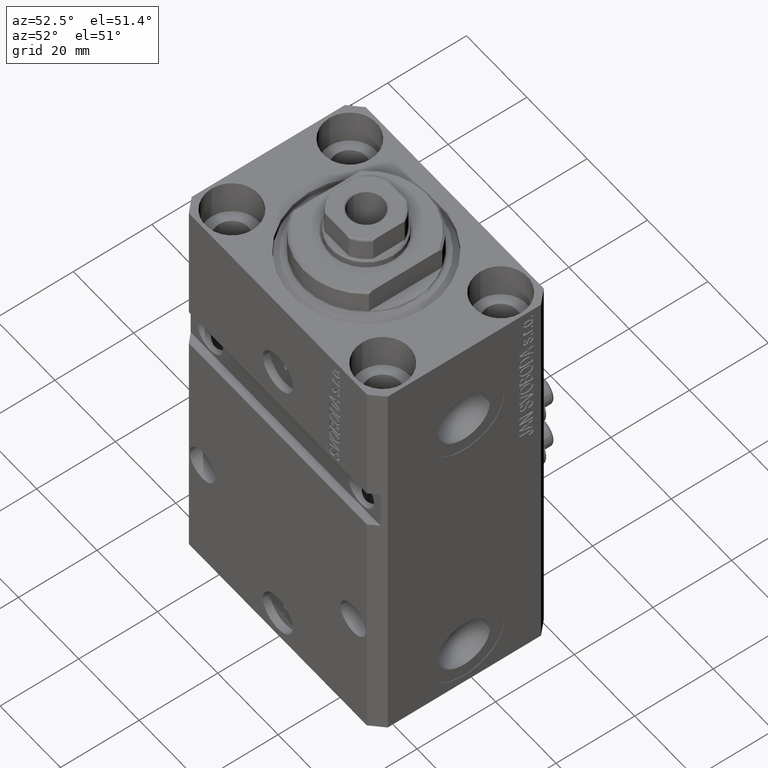
[diagram: clean part render]
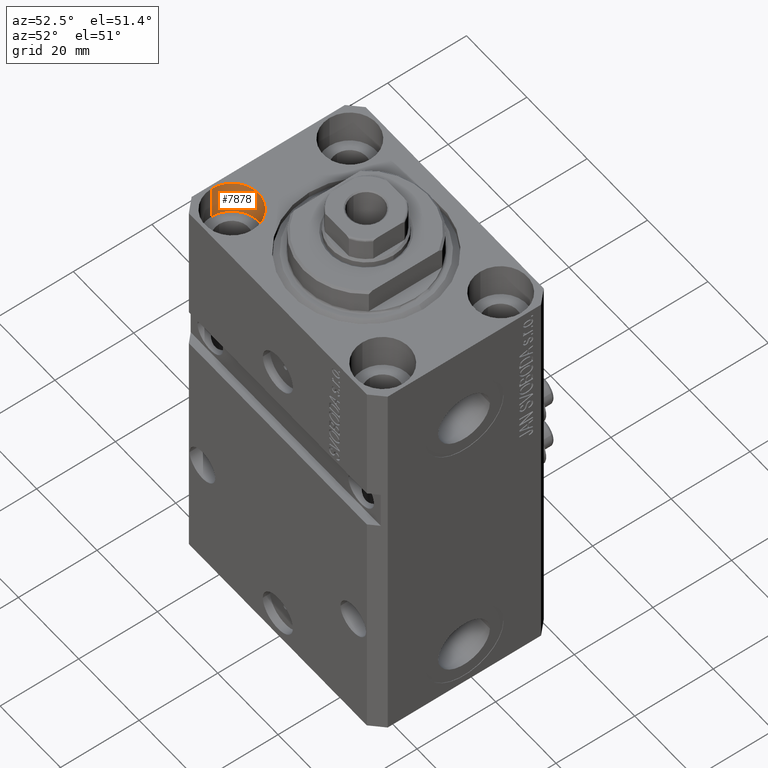
[diagram: same view with one face highlighted and labeled with its STEP entity id]
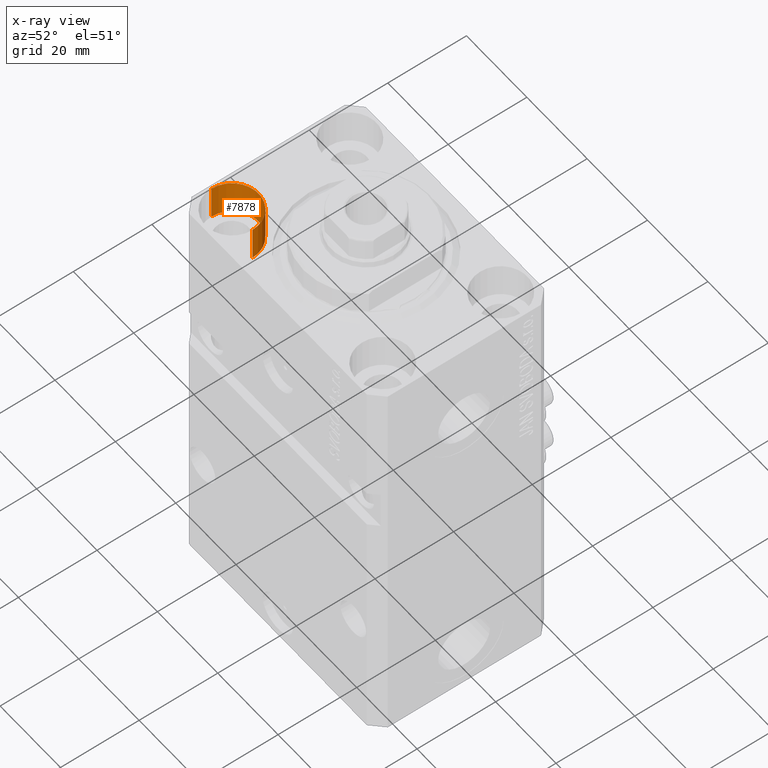
[diagram: x-ray of the same camera — body ghosted, the highlighted face saturated]
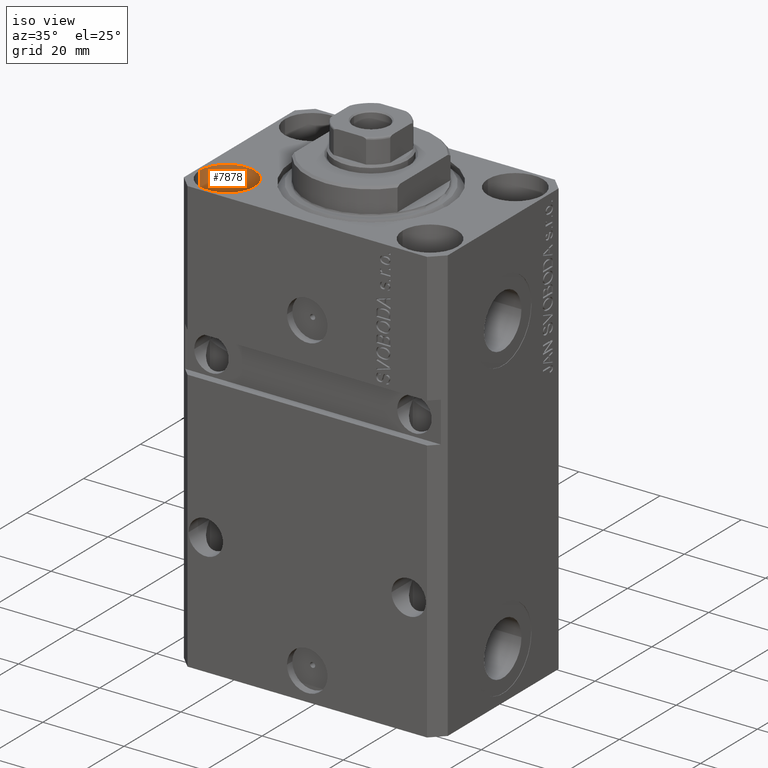
[diagram: same view with one face highlighted and labeled with its STEP entity id]
A machine part, auxiliary view. The second image highlights one B-rep face of the part: STEP entity #7878.
The next image is the same camera in x-ray: the body ghosted, the highlighted face saturated — about 0% of this face is hidden behind the body in this view.
A second angle (iso view) of the same face is appended — the face is thin or edge-on in the first view.
In plain terms, the highlighted cylindrical surface (edge-blend (fillet) strip) has radius 6.75 mm, axis along (0, 0, 1).
Its self-contained STEP definition (entity closure, byte-faithful):
#1366 = CARTESIAN_POINT ( 'NONE',  ( -18.24999999995846167, -15.00000000000000000, -9.000000000000000000 ) ) ;
#5388 = LINE ( 'NONE', #23745, #21631 ) ;
#5584 = EDGE_CURVE ( 'NONE', #24693, #25983, #30050, .T. ) ;
#7878 = ADVANCED_FACE ( 'NONE', ( #27024 ), #8449, .F. ) ;
#8449 = CYLINDRICAL_SURFACE ( 'NONE', #24731, 6.750000000041541881 ) ;
#9944 = EDGE_CURVE ( 'NONE', #34253, #13202, #32482, .T. ) ;
#11223 = EDGE_CURVE ( 'NONE', #13202, #25983, #22081, .T. ) ;
#12044 = ORIENTED_EDGE ( 'NONE', *, *, #9944, .F. ) ;
#12980 = ORIENTED_EDGE ( 'NONE', *, *, #11223, .F. ) ;
#13202 = VERTEX_POINT ( 'NONE', #39151 ) ;
#13968 = ORIENTED_EDGE ( 'NONE', *, *, #5584, .T. ) ;
#14163 = DIRECTION ( 'NONE',  ( 0.000000000000000000, 0.000000000000000000, 1.000000000000000000 ) ) ;
#16490 = DIRECTION ( 'NONE',  ( -0.000000000000000000, -0.000000000000000000, 1.000000000000000000 ) ) ;
#20451 = CARTESIAN_POINT ( 'NONE',  ( -25.00000000000000355, -15.00000000000000000, -9.000000000000000000 ) ) ;
#21631 = VECTOR ( 'NONE', #16490, 1000.000000000000000 ) ;
#22081 = LINE ( 'NONE', #32938, #28693 ) ;
#22954 = DIRECTION ( 'NONE',  ( 0.000000000000000000, 0.000000000000000000, 1.000000000000000000 ) ) ;
#23745 = CARTESIAN_POINT ( 'NONE',  ( -18.24999999995846167, -15.00000000000000000, -9.000000000000000000 ) ) ;
#24693 = VERTEX_POINT ( 'NONE', #30158 ) ;
#24731 = AXIS2_PLACEMENT_3D ( 'NONE', #38138, #45628, #34510 ) ;
#25983 = VERTEX_POINT ( 'NONE', #47199 ) ;
#26173 = DIRECTION ( 'NONE',  ( -0.000000000000000000, -0.000000000000000000, 1.000000000000000000 ) ) ;
#27024 = FACE_OUTER_BOUND ( 'NONE', #33037, .T. ) ;
#28658 = AXIS2_PLACEMENT_3D ( 'NONE', #20451, #14163, #39250 ) ;
#28693 = VECTOR ( 'NONE', #26173, 1000.000000000000000 ) ;
#30050 = CIRCLE ( 'NONE', #37013, 6.750000000041541881 ) ;
#30158 = CARTESIAN_POINT ( 'NONE',  ( -18.24999999995846167, -15.00000000000000000, 0.000000000000000000 ) ) ;
#32114 = EDGE_CURVE ( 'NONE', #34253, #24693, #5388, .T. ) ;
#32482 = CIRCLE ( 'NONE', #28658, 6.750000000041541881 ) ;
#32938 = CARTESIAN_POINT ( 'NONE',  ( -31.75000000004154899, -15.00000000000000000, -9.000000000000000000 ) ) ;
#33037 = EDGE_LOOP ( 'NONE', ( #12980, #12044, #38605, #13968 ) ) ;
#33330 = CARTESIAN_POINT ( 'NONE',  ( -25.00000000000000355, -15.00000000000000000, 0.000000000000000000 ) ) ;
#34253 = VERTEX_POINT ( 'NONE', #1366 ) ;
#34510 = DIRECTION ( 'NONE',  ( 1.000000000000000000, 0.000000000000000000, 0.000000000000000000 ) ) ;
#37013 = AXIS2_PLACEMENT_3D ( 'NONE', #33330, #22954, #37670 ) ;
#37670 = DIRECTION ( 'NONE',  ( 1.000000000000000000, 0.000000000000000000, 0.000000000000000000 ) ) ;
#38138 = CARTESIAN_POINT ( 'NONE',  ( -25.00000000000000355, -15.00000000000000000, -9.000000000000000000 ) ) ;
#38605 = ORIENTED_EDGE ( 'NONE', *, *, #32114, .T. ) ;
#39151 = CARTESIAN_POINT ( 'NONE',  ( -31.75000000004154899, -15.00000000000000000, -9.000000000000000000 ) ) ;
#39250 = DIRECTION ( 'NONE',  ( 1.000000000000000000, 0.000000000000000000, 0.000000000000000000 ) ) ;
#45628 = DIRECTION ( 'NONE',  ( -0.000000000000000000, -0.000000000000000000, 1.000000000000000000 ) ) ;
#47199 = CARTESIAN_POINT ( 'NONE',  ( -31.75000000004154899, -15.00000000000000000, 0.000000000000000000 ) ) ;